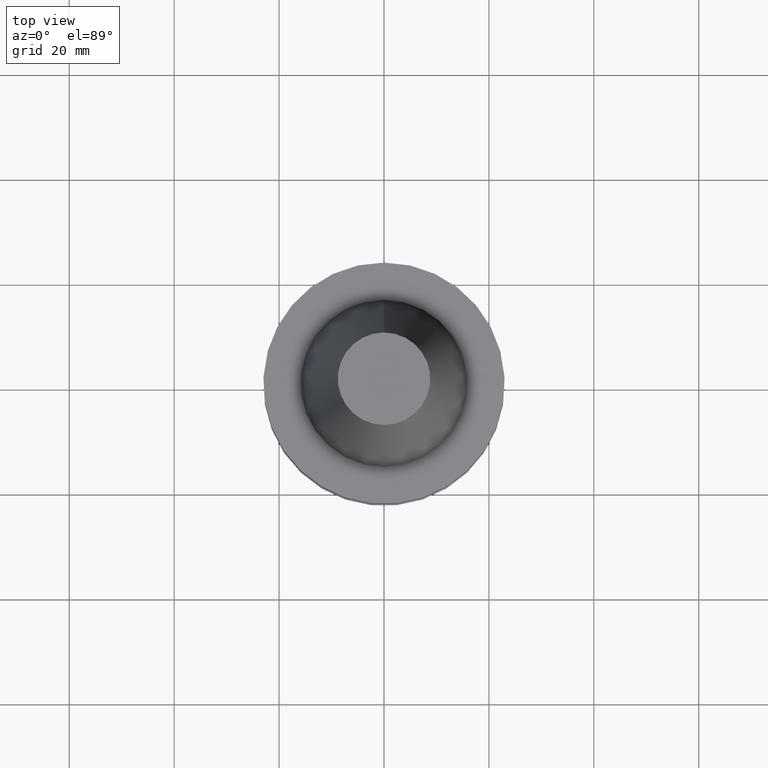
[diagram: clean part render]
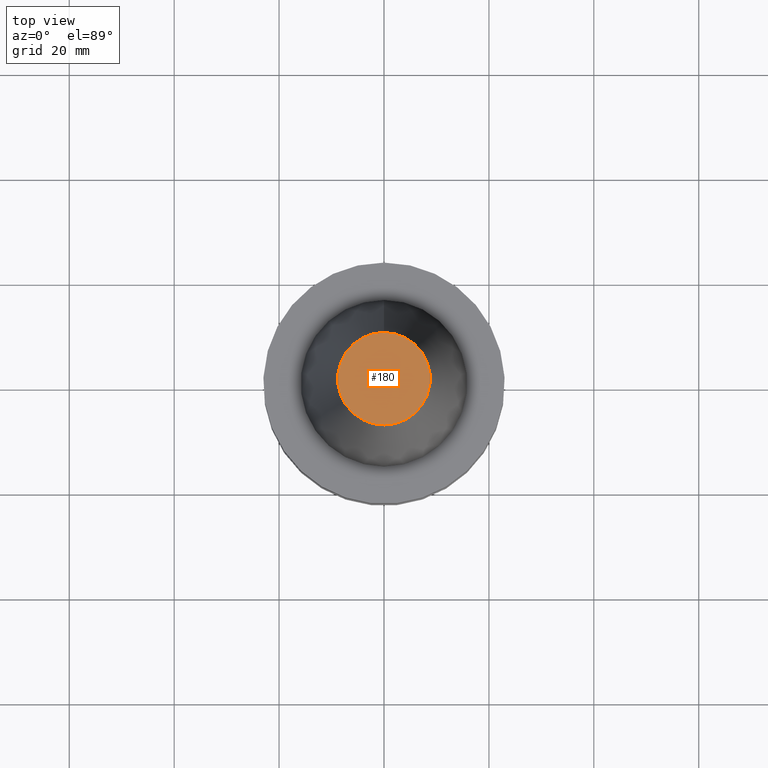
[diagram: same view with one face highlighted and labeled with its STEP entity id]
A machine part, top view. The second image highlights one B-rep face of the part: STEP entity #180.
In plain terms, the highlighted planar face has unit normal (-0, -0, 1).
Its self-contained STEP definition (entity closure, byte-faithful):
#116=EDGE_CURVE('Unnamed[1]',#265,#265,#266,.T.);
#180=ADVANCED_FACE('Unnamed[1]',(#362),#363,.T.);
#265=VERTEX_POINT('',#455);
#266=CIRCLE('',#456,8.81650000198669);
#362=FACE_OUTER_BOUND('',#577,.T.);
#363=PLANE('',#578);
#455=CARTESIAN_POINT('',(-2.96364525393659E-015,8.81650000198669,48.4));
#456=AXIS2_PLACEMENT_3D('',#652,#653,#654);
#577=EDGE_LOOP('',(#757));
#578=AXIS2_PLACEMENT_3D('',#758,#759,#760);
#652=CARTESIAN_POINT('',(-2.96364525393659E-015,-5.92729050787319E-015,48.4));
#653=DIRECTION('',(6.12323399573677E-017,1.22464679914735E-016,-1.0));
#654=DIRECTION('',(-1.23259516440783E-032,1.0,1.22464679914735E-016));
#757=ORIENTED_EDGE('',*,*,#116,.F.);
#758=CARTESIAN_POINT('',(-2.96364525393659E-015,4.40825000099334,48.4));
#759=DIRECTION('',(-6.12323399573677E-017,-1.22464679914735E-016,1.0));
#760=DIRECTION('',(1.23259516440783E-032,-1.0,-1.22464679914735E-016));